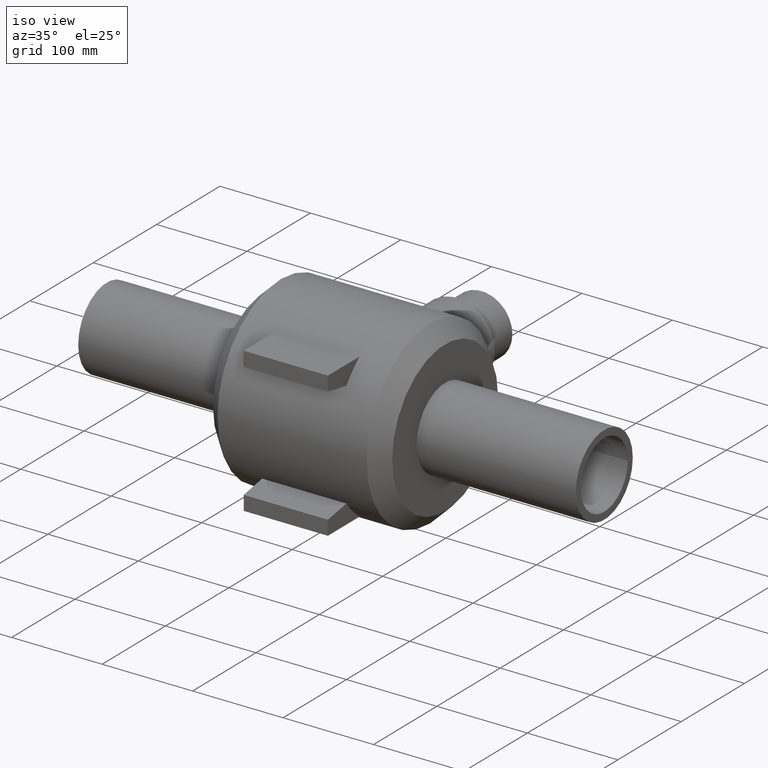
[diagram: clean part render]
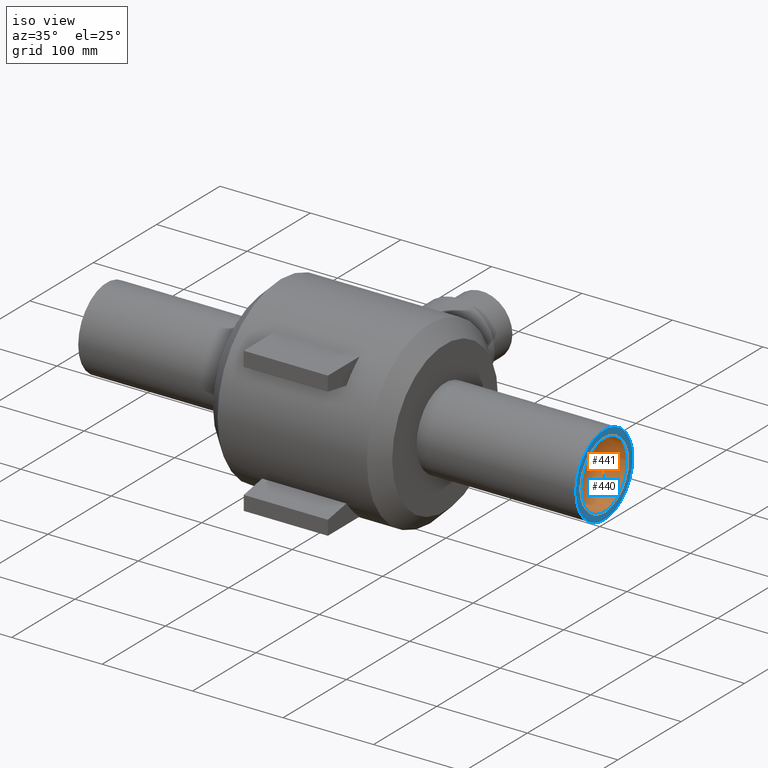
[diagram: same view with the hole feature highlighted: cylindrical wall and planar end face, labeled with their STEP entity ids]
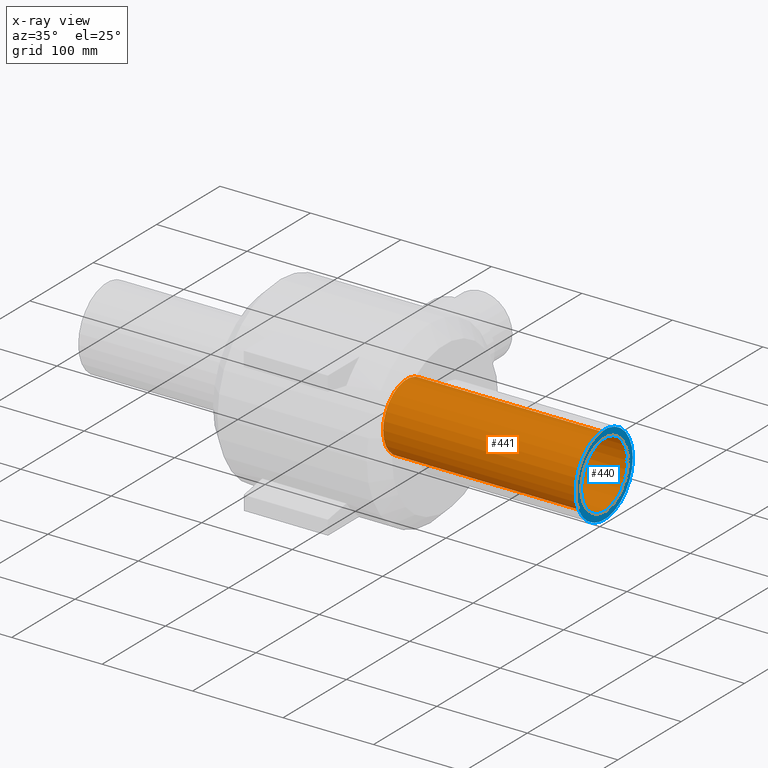
[diagram: x-ray of the same camera — body ghosted, the hole faces saturated]
A machine part, iso view. The highlighted faces form one hole feature of diameter 74 mm: the cylindrical wall (entity #441, orange) and its adjacent planar end face (entity #440, blue) — they share a circular edge in the B-rep.
The next image is the same camera in x-ray (body ghosted, the hole faces saturated) — the bore reads through the body.
Wall:
#97=FACE_BOUND('',#192,.T.);
#109=CYLINDRICAL_SURFACE('',#497,37.);
#140=FACE_OUTER_BOUND('',#191,.T.);
#191=EDGE_LOOP('',(#402));
#192=EDGE_LOOP('',(#403));
#224=CIRCLE('',#496,37.);
#225=CIRCLE('',#498,37.);
#263=VERTEX_POINT('',#922);
#264=VERTEX_POINT('',#925);
#311=EDGE_CURVE('',#263,#263,#224,.T.);
#312=EDGE_CURVE('',#264,#264,#225,.T.);
#402=ORIENTED_EDGE('',*,*,#312,.F.);
#403=ORIENTED_EDGE('',*,*,#311,.T.);
#441=ADVANCED_FACE('',(#140,#97),#109,.F.);
#496=AXIS2_PLACEMENT_3D('',#923,#624,#625);
#497=AXIS2_PLACEMENT_3D('',#924,#626,#627);
#498=AXIS2_PLACEMENT_3D('',#926,#628,#629);
#624=DIRECTION('center_axis',(1.,0.,0.));
#625=DIRECTION('ref_axis',(0.,0.,-1.));
#626=DIRECTION('center_axis',(1.,0.,0.));
#627=DIRECTION('ref_axis',(0.,1.,0.));
#628=DIRECTION('center_axis',(1.,0.,0.));
#629=DIRECTION('ref_axis',(0.,0.,-1.));
#922=CARTESIAN_POINT('',(275.,37.,0.));
#923=CARTESIAN_POINT('Origin',(275.,0.,0.));
#924=CARTESIAN_POINT('Origin',(165.727867436277,0.,0.));
#925=CARTESIAN_POINT('',(56.455734872553,37.,0.));
#926=CARTESIAN_POINT('Origin',(56.4557348725531,0.,0.));
End face:
#32=PLANE('',#495);
#96=FACE_BOUND('',#190,.T.);
#139=FACE_OUTER_BOUND('',#189,.T.);
#189=EDGE_LOOP('',(#400));
#190=EDGE_LOOP('',(#401));
#223=CIRCLE('',#494,45.);
#224=CIRCLE('',#496,37.);
#262=VERTEX_POINT('',#919);
#263=VERTEX_POINT('',#922);
#310=EDGE_CURVE('',#262,#262,#223,.T.);
#311=EDGE_CURVE('',#263,#263,#224,.T.);
#400=ORIENTED_EDGE('',*,*,#310,.T.);
#401=ORIENTED_EDGE('',*,*,#311,.F.);
#440=ADVANCED_FACE('',(#139,#96),#32,.T.);
#494=AXIS2_PLACEMENT_3D('',#920,#620,#621);
#495=AXIS2_PLACEMENT_3D('',#921,#622,#623);
#496=AXIS2_PLACEMENT_3D('',#923,#624,#625);
#620=DIRECTION('center_axis',(1.,0.,0.));
#621=DIRECTION('ref_axis',(0.,0.,-1.));
#622=DIRECTION('center_axis',(1.,0.,0.));
#623=DIRECTION('ref_axis',(0.,0.,-1.));
#624=DIRECTION('center_axis',(1.,0.,0.));
#625=DIRECTION('ref_axis',(0.,0.,-1.));
#919=CARTESIAN_POINT('',(275.,45.,0.));
#920=CARTESIAN_POINT('Origin',(275.,0.,0.));
#921=CARTESIAN_POINT('Origin',(275.,37.,0.));
#922=CARTESIAN_POINT('',(275.,37.,0.));
#923=CARTESIAN_POINT('Origin',(275.,0.,0.));